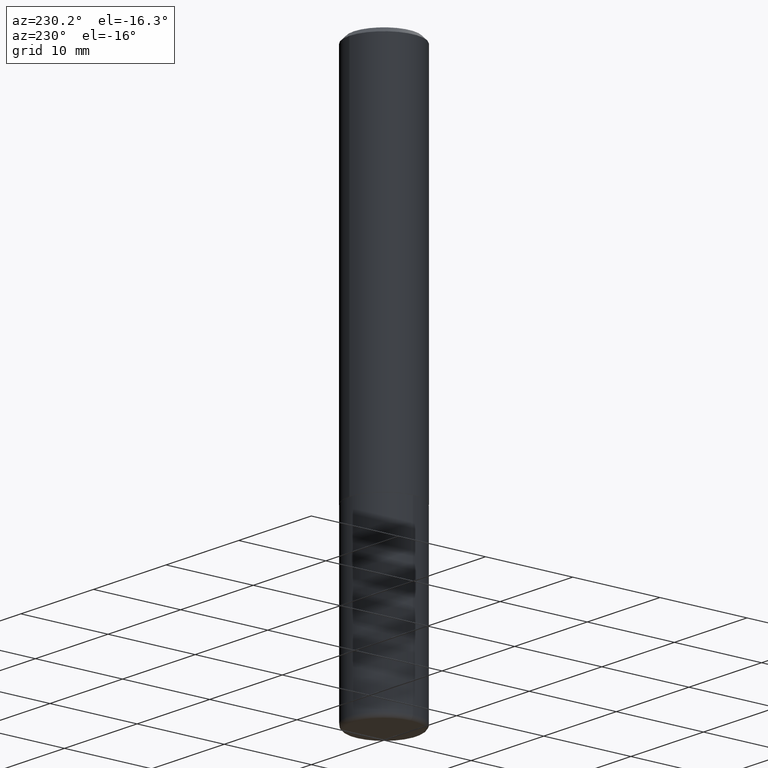
[diagram: clean part render]
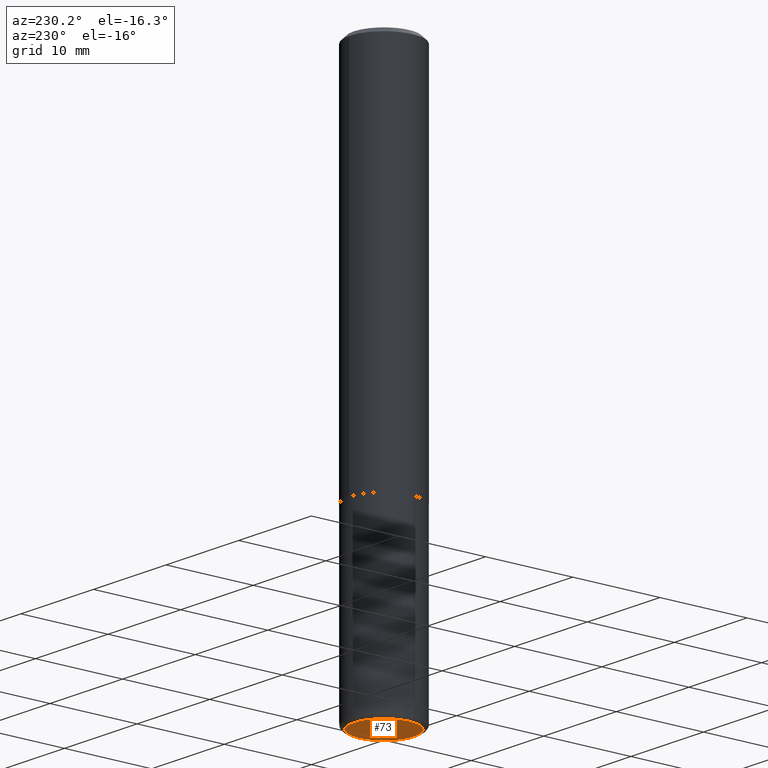
[diagram: same view with one face highlighted and labeled with its STEP entity id]
A machine part, auxiliary view. The second image highlights one B-rep face of the part: STEP entity #73.
In plain terms, the highlighted planar face has unit normal (0, -0, -1).
Its self-contained STEP definition (entity closure, byte-faithful):
#20 = DIRECTION ( 'NONE',  ( -2.445468806185136597E-29, 3.491481338843145583E-15, 1.000000000000000000 ) ) ;
#32 = DIRECTION ( 'NONE',  ( 1.000000000000000000, -6.982962677686273021E-15, 0.000000000000000000 ) ) ;
#73 = ADVANCED_FACE ( 'NONE', ( #282 ), #406, .T. ) ;
#87 = DIRECTION ( 'NONE',  ( 2.438088387897960049E-29, -3.491481338843145188E-15, -1.000000000000000000 ) ) ;
#89 = CARTESIAN_POINT ( 'NONE',  ( -0.1362500000000000100, -7.654619782670286835E-15, -2.500000000000000000 ) ) ;
#120 = DIRECTION ( 'NONE',  ( -1.000000000000000000, 6.982962677686265922E-15, -4.876176775795935793E-29 ) ) ;
#127 = VERTEX_POINT ( 'NONE', #89 ) ;
#128 = CARTESIAN_POINT ( 'NONE',  ( 6.113672015462842613E-29, -8.728703347107864943E-15, -2.500000000000000000 ) ) ;
#129 = CARTESIAN_POINT ( 'NONE',  ( 6.113672015462842613E-29, -8.728703347107864943E-15, -2.500000000000000000 ) ) ;
#141 = EDGE_LOOP ( 'NONE', ( #275, #265 ) ) ;
#153 = CIRCLE ( 'NONE', #163, 0.1362500000000000100 ) ;
#160 = CIRCLE ( 'NONE', #393, 0.1362500000000000100 ) ;
#163 = AXIS2_PLACEMENT_3D ( 'NONE', #129, #266, #32 ) ;
#171 = AXIS2_PLACEMENT_3D ( 'NONE', #311, #87, #120 ) ;
#214 = EDGE_CURVE ( 'NONE', #362, #127, #153, .T. ) ;
#265 = ORIENTED_EDGE ( 'NONE', *, *, #304, .F. ) ;
#266 = DIRECTION ( 'NONE',  ( -2.445468806185136597E-29, 3.491481338843145583E-15, 1.000000000000000000 ) ) ;
#275 = ORIENTED_EDGE ( 'NONE', *, *, #214, .F. ) ;
#282 = FACE_OUTER_BOUND ( 'NONE', #141, .T. ) ;
#293 = DIRECTION ( 'NONE',  ( 1.000000000000000000, -6.982962677686273021E-15, 0.000000000000000000 ) ) ;
#304 = EDGE_CURVE ( 'NONE', #127, #362, #160, .T. ) ;
#311 = CARTESIAN_POINT ( 'NONE',  ( 6.113672015462842613E-29, -8.728703347107864943E-15, -2.500000000000000000 ) ) ;
#352 = CARTESIAN_POINT ( 'NONE',  ( 0.1362500000000000100, -9.680132011942619886E-15, -2.500000000000000000 ) ) ;
#362 = VERTEX_POINT ( 'NONE', #352 ) ;
#393 = AXIS2_PLACEMENT_3D ( 'NONE', #128, #20, #293 ) ;
#406 = PLANE ( 'NONE',  #171 ) ;